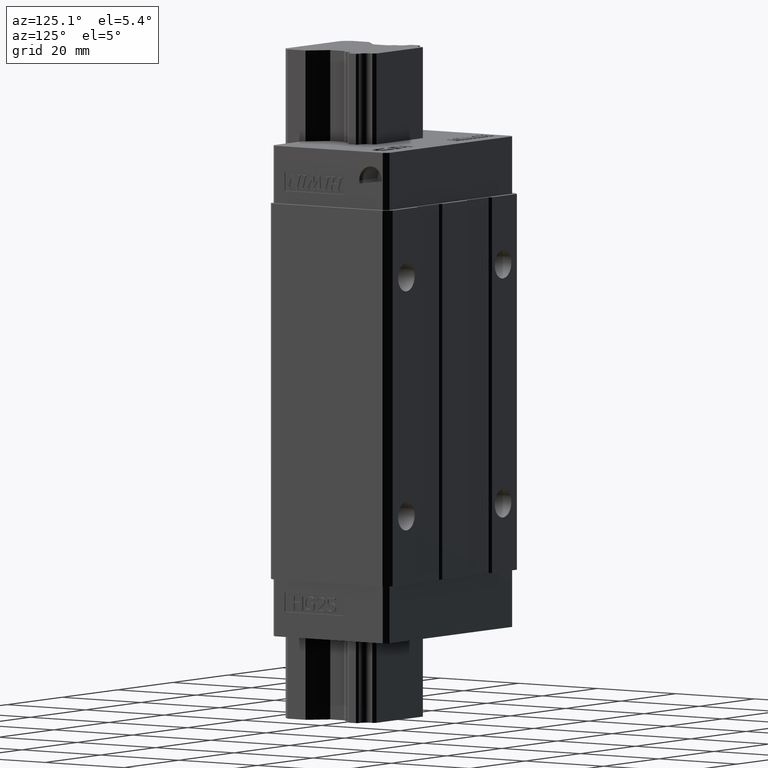
[diagram: clean part render]
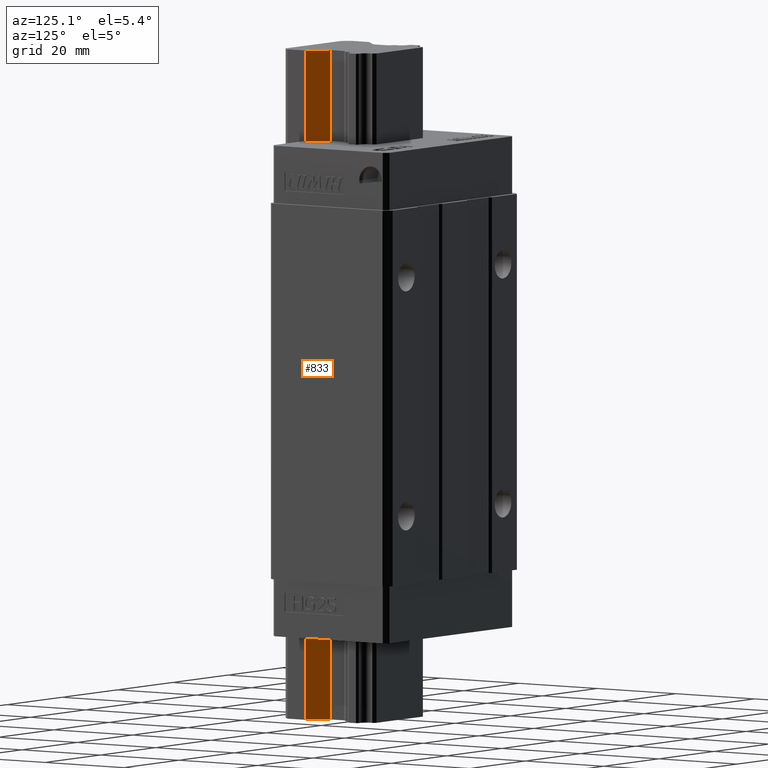
[diagram: same view with one face highlighted and labeled with its STEP entity id]
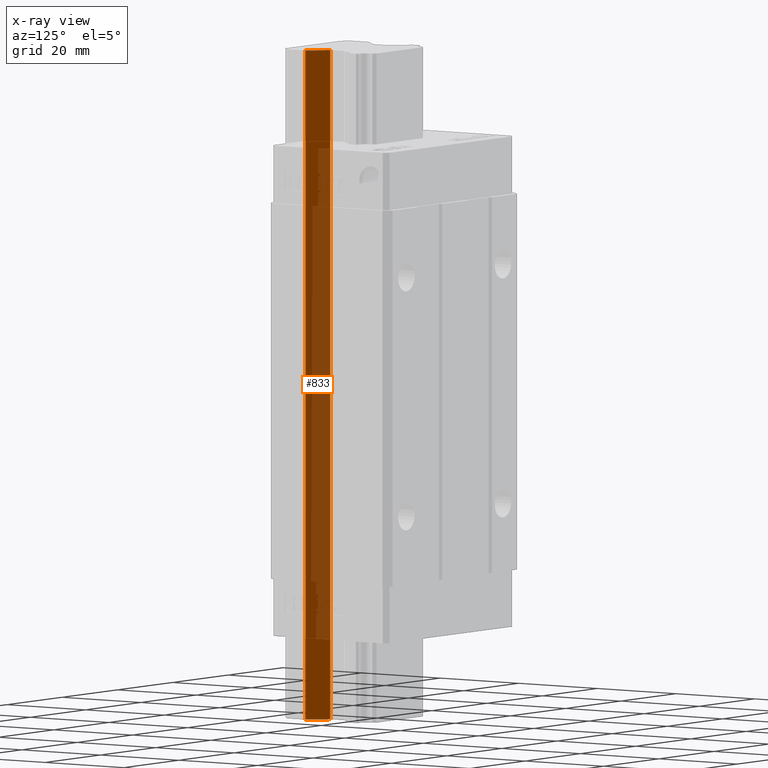
[diagram: x-ray of the same camera — body ghosted, the highlighted face saturated]
A machine part, auxiliary view. The second image highlights one B-rep face of the part: STEP entity #833.
The next image is the same camera in x-ray: the body ghosted, the highlighted face saturated — about 51% of this face is hidden behind the body in this view.
In plain terms, the highlighted planar face has unit normal (0.7071, 0.7071, 0).
Its self-contained STEP definition (entity closure, byte-faithful):
#81=DIRECTION('',(-7.071068289637E-1,7.071067334094E-1,0.E0));
#82=VECTOR('',#81,5.232589827227E0);
#83=CARTESIAN_POINT('',(1.15E1,-1.590135049989E1,-1.09E2));
#84=LINE('',#83,#82);
#137=DIRECTION('',(7.071068289637E-1,-7.071067334094E-1,0.E0));
#138=VECTOR('',#137,5.232589827227E0);
#139=CARTESIAN_POINT('',(7.800000000002E0,-1.220135099989E1,3.1E1));
#140=LINE('',#139,#138);
#309=DIRECTION('',(0.E0,0.E0,-1.E0));
#310=VECTOR('',#309,1.4E2);
#311=CARTESIAN_POINT('',(1.15E1,-1.590135049989E1,3.1E1));
#312=LINE('',#311,#310);
#313=DIRECTION('',(0.E0,0.E0,-1.E0));
#314=VECTOR('',#313,1.4E2);
#315=CARTESIAN_POINT('',(7.800000000002E0,-1.220135099989E1,3.1E1));
#316=LINE('',#315,#314);
#387=CARTESIAN_POINT('',(1.15E1,-1.590135049989E1,-1.09E2));
#388=VERTEX_POINT('',#387);
#389=CARTESIAN_POINT('',(7.800000000002E0,-1.220135099989E1,-1.09E2));
#390=VERTEX_POINT('',#389);
#411=CARTESIAN_POINT('',(7.800000000002E0,-1.220135099989E1,3.1E1));
#412=VERTEX_POINT('',#411);
#413=CARTESIAN_POINT('',(1.15E1,-1.590135049989E1,3.1E1));
#414=VERTEX_POINT('',#413);
#821=CARTESIAN_POINT('',(1.15E1,-1.590135049989E1,-1.09E2));
#822=DIRECTION('',(7.071067334097E-1,7.071068289633E-1,0.E0));
#823=DIRECTION('',(-7.071068289633E-1,7.071067334097E-1,0.E0));
#824=AXIS2_PLACEMENT_3D('',#821,#822,#823);
#825=PLANE('',#824);
#826=ORIENTED_EDGE('',*,*,#504,.F.);
#827=ORIENTED_EDGE('',*,*,#816,.F.);
#828=ORIENTED_EDGE('',*,*,#552,.F.);
#830=ORIENTED_EDGE('',*,*,#829,.T.);
#831=EDGE_LOOP('',(#826,#827,#828,#830));
#832=FACE_OUTER_BOUND('',#831,.F.);
#833=ADVANCED_FACE('',(#832),#825,.T.);
#504=EDGE_CURVE('',#388,#390,#84,.T.);
#552=EDGE_CURVE('',#412,#414,#140,.T.);
#816=EDGE_CURVE('',#414,#388,#312,.T.);
#829=EDGE_CURVE('',#412,#390,#316,.T.);